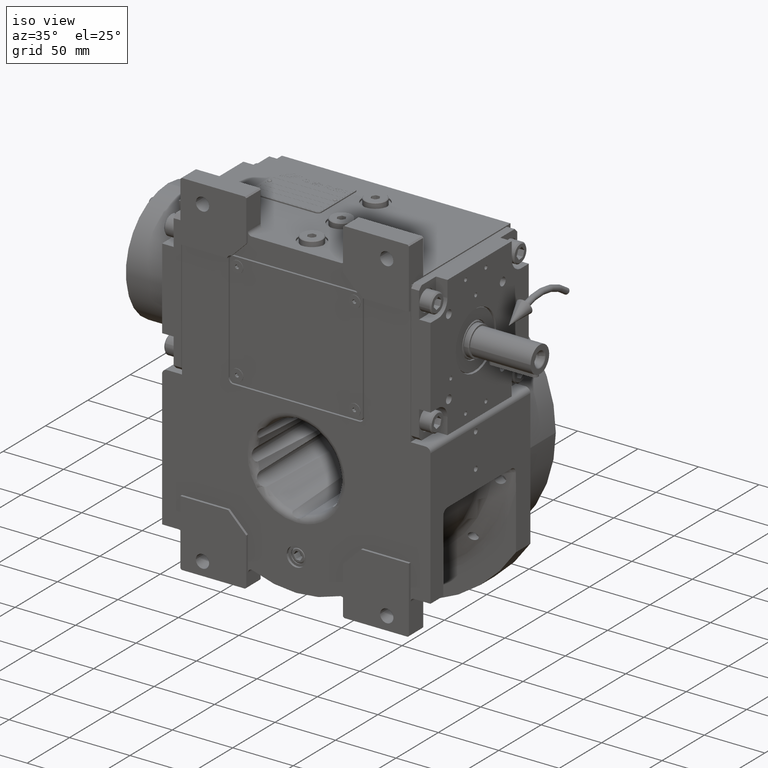
[diagram: clean part render]
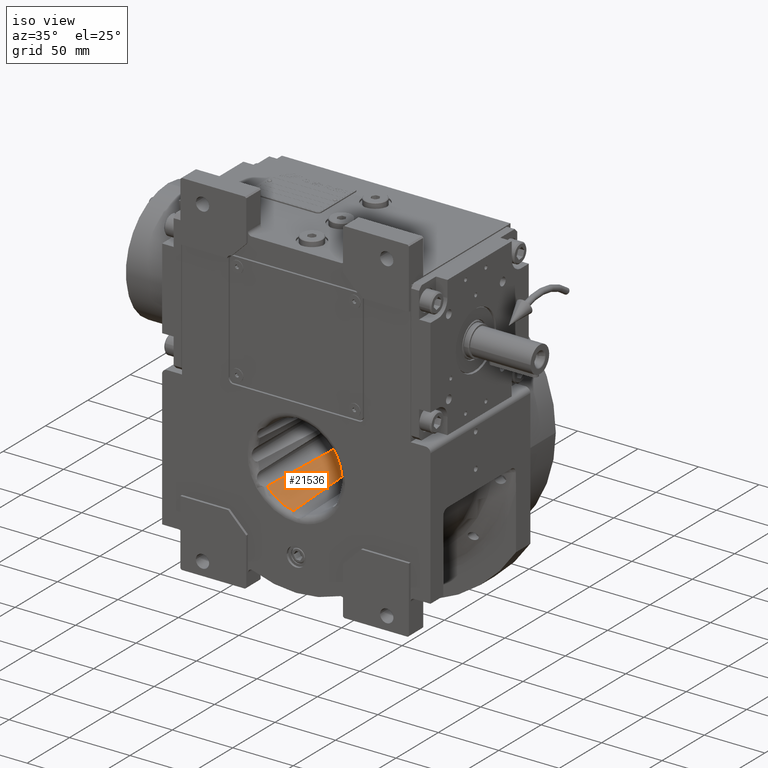
[diagram: same view with one face highlighted and labeled with its STEP entity id]
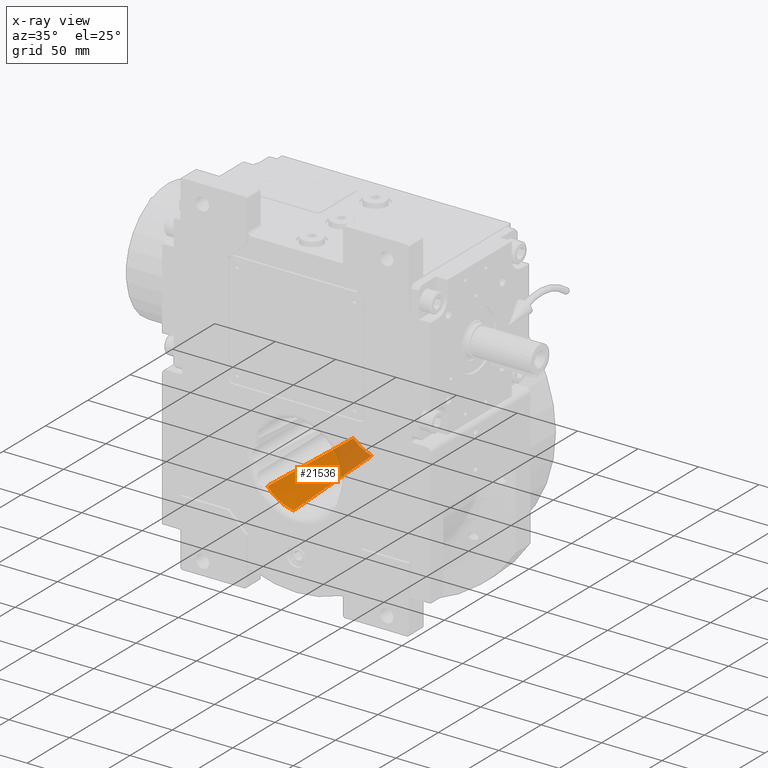
[diagram: x-ray of the same camera — body ghosted, the highlighted face saturated]
A machine part, iso view. The second image highlights one B-rep face of the part: STEP entity #21536.
The next image is the same camera in x-ray: the body ghosted, the highlighted face saturated — about 25% of this face is hidden behind the body in this view.
In plain terms, the highlighted conical surface has half-angle 2.224 deg.
Its self-contained STEP definition (entity closure, byte-faithful):
#182 = CIRCLE ( 'NONE', #320, 35.31336033009873887 ) ;
#320 = AXIS2_PLACEMENT_3D ( 'NONE', #49853, #80786, #11229 ) ;
#1290 = CARTESIAN_POINT ( 'NONE',  ( -25.73542481560767925, -19.55262967312114597, -22.49607938580674116 ) ) ;
#2604 = ORIENTED_EDGE ( 'NONE', *, *, #56949, .T. ) ;
#4534 = CARTESIAN_POINT ( 'NONE',  ( -6.573042581012001229, -21.28232574570029456, -33.61216087140498843 ) ) ;
#5045 = CARTESIAN_POINT ( 'NONE',  ( -6.273740631055740202, -32.92053606256847331, -34.13003539084533600 ) ) ;
#5880 = CARTESIAN_POINT ( 'NONE',  ( -24.82765555850797057, -0.6183679709979381656, -22.41083419928926901 ) ) ;
#7902 = CARTESIAN_POINT ( 'NONE',  ( -25.95781279270585884, -23.94214980640764168, -22.50025392737137153 ) ) ;
#9215 = VERTEX_POINT ( 'NONE', #55930 ) ;
#9385 = CARTESIAN_POINT ( 'NONE',  ( -25.51128382925622518, -15.03979164104011623, -22.48583985255021389 ) ) ;
#11229 = DIRECTION ( 'NONE',  ( -0.1620874830058605665, 0.000000000000000000, -0.9867763920224403851 ) ) ;
#11646 = CARTESIAN_POINT ( 'NONE',  ( -7.407450296395254874, 30.57923326115427187, -31.37285089430780260 ) ) ;
#12140 = CARTESIAN_POINT ( 'NONE',  ( -6.925363044724594630, -4.605542417194644855, -32.87978573518132208 ) ) ;
#13082 = ORIENTED_EDGE ( 'NONE', *, *, #50479, .F. ) ;
#13644 = CARTESIAN_POINT ( 'NONE',  ( -6.986757225006564376, -1.079452833615444085, -32.72676720994347477 ) ) ;
#13950 = AXIS2_PLACEMENT_3D ( 'NONE', #66821, #59701, #20587 ) ;
#20321 = ORIENTED_EDGE ( 'NONE', *, *, #86803, .T. ) ;
#20587 = DIRECTION ( 'NONE',  ( -0.2361627373232039195, 5.487550186174294167E-15, -0.9717135182243846758 ) ) ;
#20792 = CARTESIAN_POINT ( 'NONE',  ( -6.662437457719343037, -17.52649175088214406, -33.44591884644309943 ) ) ;
#21068 = CONICAL_SURFACE ( 'NONE', #61681, 1.000000000000000000, 0.03881544608146950126 ) ;
#21149 = CARTESIAN_POINT ( 'NONE',  ( -24.40343721502824437, 8.805876939486235955, -22.33347346584871573 ) ) ;
#21536 = ADVANCED_FACE ( 'NONE', ( #41811 ), #21068, .F. ) ;
#21644 = CARTESIAN_POINT ( 'NONE',  ( -23.97559824004786222, 18.69828849824494554, -22.23098874910949974 ) ) ;
#22648 = CARTESIAN_POINT ( 'NONE',  ( -25.77231298794204761, -20.28739144558290874, -22.49722197610444141 ) ) ;
#23139 = CARTESIAN_POINT ( 'NONE',  ( -25.61991781860606920, -17.24455032291482226, -22.49199927322203152 ) ) ;
#24139 = CARTESIAN_POINT ( 'NONE',  ( -25.75368476736253243, -19.91655888828228882, -22.49665975858389544 ) ) ;
#24237 = ORIENTED_EDGE ( 'NONE', *, *, #72457, .T. ) ;
#27386 = CARTESIAN_POINT ( 'NONE',  ( -6.564052057620176406, -21.65130370057567433, -33.62851756936991166 ) ) ;
#28739 = CARTESIAN_POINT ( 'NONE',  ( -22.86960190519749858, 46.61641710001740080, -21.82427154779680123 ) ) ;
#30242 = CARTESIAN_POINT ( 'NONE',  ( -24.84450238247015363, -0.9852262047059946459, -22.41343067772830722 ) ) ;
#35514 = CARTESIAN_POINT ( 'NONE',  ( -6.599306107035019409, -20.19458487514449629, -33.56397017673172201 ) ) ;
#36022 = CARTESIAN_POINT ( 'NONE',  ( -6.760513058433492262, -13.11549992965726652, -33.25152393889313629 ) ) ;
#36192 = DIRECTION ( 'NONE',  ( 0.000000000000000000, -1.000000000000000000, 1.836909530733564901E-16 ) ) ;
#40387 = CARTESIAN_POINT ( 'NONE',  ( -25.88057552578210263, -22.43255883304559006, -22.49981477761766868 ) ) ;
#41426 = EDGE_LOOP ( 'NONE', ( #13082, #20321, #2604, #24237 ) ) ;
#41706 = CARTESIAN_POINT ( 'NONE',  ( -27.31593238095755183, -48.69402850002909844, -22.38019785351220392 ) ) ;
#41811 = FACE_OUTER_BOUND ( 'NONE', #41426, .T. ) ;
#43132 = CARTESIAN_POINT ( 'NONE',  ( -6.581826262602816335, -20.91999557359411810, -33.59610421288996918 ) ) ;
#44485 = CARTESIAN_POINT ( 'NONE',  ( -24.76852740281287524, 0.6730493447969587706, -22.40147263994368032 ) ) ;
#44639 = CARTESIAN_POINT ( 'NONE',  ( -6.956713694644892421, -2.830628606097816302, -32.80269391485042263 ) ) ;
#44998 = CARTESIAN_POINT ( 'NONE',  ( -24.83612322844836129, -0.8028076791545241120, -22.41214229727708585 ) ) ;
#46511 = CARTESIAN_POINT ( 'NONE',  ( -25.03417263692657357, -5.111746354802060743, -22.44241922409014123 ) ) ;
#49665 = B_SPLINE_CURVE_WITH_KNOTS ( 'NONE', 3,
 ( #28739, #91177, #90671, #21644, #52133, #21149, #83057, #99282, #44485, #75471, #5880, #44998, #75972, #30242, #46511, #77463, #9385, #23139, #1290, #24139, #100285, #22648, #86061, #40387, #7902, #55634, #69887, #92687 ),
 .UNSPECIFIED., .F., .F.,
 ( 4, 2, 2, 1, 1, 1, 1, 1, 2, 2, 2, 1, 1, 2, 2, 1, 2, 4 ),
 ( 0.000000000000000000, 0.2500000000000016098, 0.3750000000000024425, 0.4375000000000027756, 0.4687500000000029421, 0.4843750000000030531, 0.4921875000000031086, 0.4960937500000031641, 0.4980468750000031641, 0.5000000000000031086, 0.6250000000000034417, 0.6875000000000036637, 0.6953125000000035527, 0.6992187500000035527, 0.7031250000000034417, 0.7187500000000032196, 0.7500000000000027756, 1.000000000000000000 ),
 .UNSPECIFIED. ) ;
#49853 = CARTESIAN_POINT ( 'NONE',  ( -2.486899575160349704E-14, -48.69402850002909844, -1.776356839400250149E-14 ) ) ;
#50479 = EDGE_CURVE ( 'NONE', #9215, #70052, #182, .T. ) ;
#51771 = CARTESIAN_POINT ( 'NONE',  ( -6.986198756221731365, -1.112472536775718890, -32.72819764095981299 ) ) ;
#52133 = CARTESIAN_POINT ( 'NONE',  ( -24.14431659732404611, 14.73565035136440038, -22.27525475539560418 ) ) ;
#52447 = DIRECTION ( 'NONE',  ( 0.000000000000000000, 0.000000000000000000, 1.000000000000000000 ) ) ;
#53157 = CARTESIAN_POINT ( 'NONE',  ( -7.465572626883200336, 46.61641710001750027, -30.71779199823645001 ) ) ;
#55634 = CARTESIAN_POINT ( 'NONE',  ( -26.42420339653207861, -32.98277519606387642, -22.49775664289076360 ) ) ;
#55930 = CARTESIAN_POINT ( 'NONE',  ( -5.723853692384750502, -48.69402850002909844, -34.84639029672324995 ) ) ;
#56731 = B_SPLINE_CURVE_WITH_KNOTS ( 'NONE', 3,
 ( #81687, #67502, #5045, #74621, #97902, #27386, #74111, #4534, #43132, #35514, #20792, #36022, #67002, #12140, #44639, #81204, #98403, #66506, #97423, #51771, #13644, #96416, #11646, #57879 ),
 .UNSPECIFIED., .F., .F.,
 ( 4, 2, 1, 2, 2, 1, 1, 1, 1, 1, 1, 1, 1, 1, 2, 2, 4 ),
 ( 0.000000000000000000, 0.2500000000000004996, 0.2812500000000004996, 0.2851562500000004996, 0.2890625000000004996, 0.2968750000000005551, 0.3125000000000006661, 0.3750000000000013323, 0.4375000000000018874, 0.4687500000000021649, 0.4843750000000022760, 0.4921875000000023870, 0.4960937500000023870, 0.4980468750000023870, 0.4990234375000023870, 0.5000000000000024425, 1.000000000000000000 ),
 .UNSPECIFIED. ) ;
#56949 = EDGE_CURVE ( 'NONE', #80737, #99489, #69090, .T. ) ;
#57879 = CARTESIAN_POINT ( 'NONE',  ( -7.465572626883200336, 46.61641710001750027, -30.71779199823645001 ) ) ;
#59701 = DIRECTION ( 'NONE',  ( 2.795308803354745262E-15, 1.000000000000000000, 4.872149525102769825E-15 ) ) ;
#61681 = AXIS2_PLACEMENT_3D ( 'NONE', #82369, #36192, #52447 ) ;
#66506 = CARTESIAN_POINT ( 'NONE',  ( -6.983499318581207760, -1.271834121756846736, -32.73510189993323394 ) ) ;
#66821 = CARTESIAN_POINT ( 'NONE',  ( -7.105427357600998703E-15, 46.61641710001730132, 0.000000000000000000 ) ) ;
#67002 = CARTESIAN_POINT ( 'NONE',  ( -6.860290442586793880, -8.134360120738614697, -33.03346330631233485 ) ) ;
#67502 = CARTESIAN_POINT ( 'NONE',  ( -6.022077876998039869, -40.84851846487665483, -34.48864115347780057 ) ) ;
#69090 = CIRCLE ( 'NONE', #13950, 31.61198380194111124 ) ;
#69887 = CARTESIAN_POINT ( 'NONE',  ( -26.85994327092774370, -40.89856344987629200, -22.45906777047153824 ) ) ;
#70052 = VERTEX_POINT ( 'NONE', #41706 ) ;
#72457 = EDGE_CURVE ( 'NONE', #99489, #70052, #49665, .T. ) ;
#74111 = CARTESIAN_POINT ( 'NONE',  ( -6.570175816264884006, -21.40025213424047124, -33.61738769823152495 ) ) ;
#74621 = CARTESIAN_POINT ( 'NONE',  ( -6.507895992926484574, -23.90877444692146270, -33.72873704689696694 ) ) ;
#75471 = CARTESIAN_POINT ( 'NONE',  ( -24.80791845430859155, -0.1879601721515594126, -22.40775267800577097 ) ) ;
#75972 = CARTESIAN_POINT ( 'NONE',  ( -24.84177032210715907, -0.9257628674671612989, -22.41301157073969819 ) ) ;
#77463 = CARTESIAN_POINT ( 'NONE',  ( -25.22349478752745711, -9.117395885627805896, -22.46406618690551582 ) ) ;
#80737 = VERTEX_POINT ( 'NONE', #53157 ) ;
#80786 = DIRECTION ( 'NONE',  ( 0.000000000000000000, 1.000000000000000000, 0.000000000000000000 ) ) ;
#81204 = CARTESIAN_POINT ( 'NONE',  ( -6.972093517984800926, -1.940545460718466453, -32.76408545176024489 ) ) ;
#81687 = CARTESIAN_POINT ( 'NONE',  ( -5.723853692384750502, -48.69402850002909844, -34.84639029672324995 ) ) ;
#82369 = CARTESIAN_POINT ( 'NONE',  ( 0.000000000000000000, 834.8749999998768772, -1.415119829553997709E-13 ) ) ;
#83057 = CARTESIAN_POINT ( 'NONE',  ( -24.53450783046137929, 5.844536185657777771, -22.36053744860168280 ) ) ;
#86061 = CARTESIAN_POINT ( 'NONE',  ( -25.80408192873362694, -20.91873774705515743, -22.49810808266439466 ) ) ;
#86803 = EDGE_CURVE ( 'NONE', #9215, #80737, #56731, .T. ) ;
#90671 = CARTESIAN_POINT ( 'NONE',  ( -23.48138045926136641, 30.61457055577221453, -22.08259406633575850 ) ) ;
#91177 = CARTESIAN_POINT ( 'NONE',  ( -23.16783615589157819, 38.59658208330429119, -21.96288101808353233 ) ) ;
#92687 = CARTESIAN_POINT ( 'NONE',  ( -27.31593238095755183, -48.69402850002909844, -22.38019785351220392 ) ) ;
#94476 = CARTESIAN_POINT ( 'NONE',  ( -22.86960190519749858, 46.61641710001740080, -21.82427154779680123 ) ) ;
#96416 = CARTESIAN_POINT ( 'NONE',  ( -7.253242696960011671, 14.69085706488731802, -32.04362592525685471 ) ) ;
#97423 = CARTESIAN_POINT ( 'NONE',  ( -6.985119507308261255, -1.176221860482277837, -32.73095945509626858 ) ) ;
#97902 = CARTESIAN_POINT ( 'NONE',  ( -6.536400482051990757, -22.78085453538672311, -33.67860664866778819 ) ) ;
#98403 = CARTESIAN_POINT ( 'NONE',  ( -6.979709668917707610, -1.494847328070269876, -32.74476566864652227 ) ) ;
#99282 = CARTESIAN_POINT ( 'NONE',  ( -24.69007782272950280, 2.395844055718240995, -22.38844597932058278 ) ) ;
#99489 = VERTEX_POINT ( 'NONE', #94476 ) ;
#100285 = CARTESIAN_POINT ( 'NONE',  ( -25.76586295525374126, -20.15906628362315445, -22.49703246913887611 ) ) ;